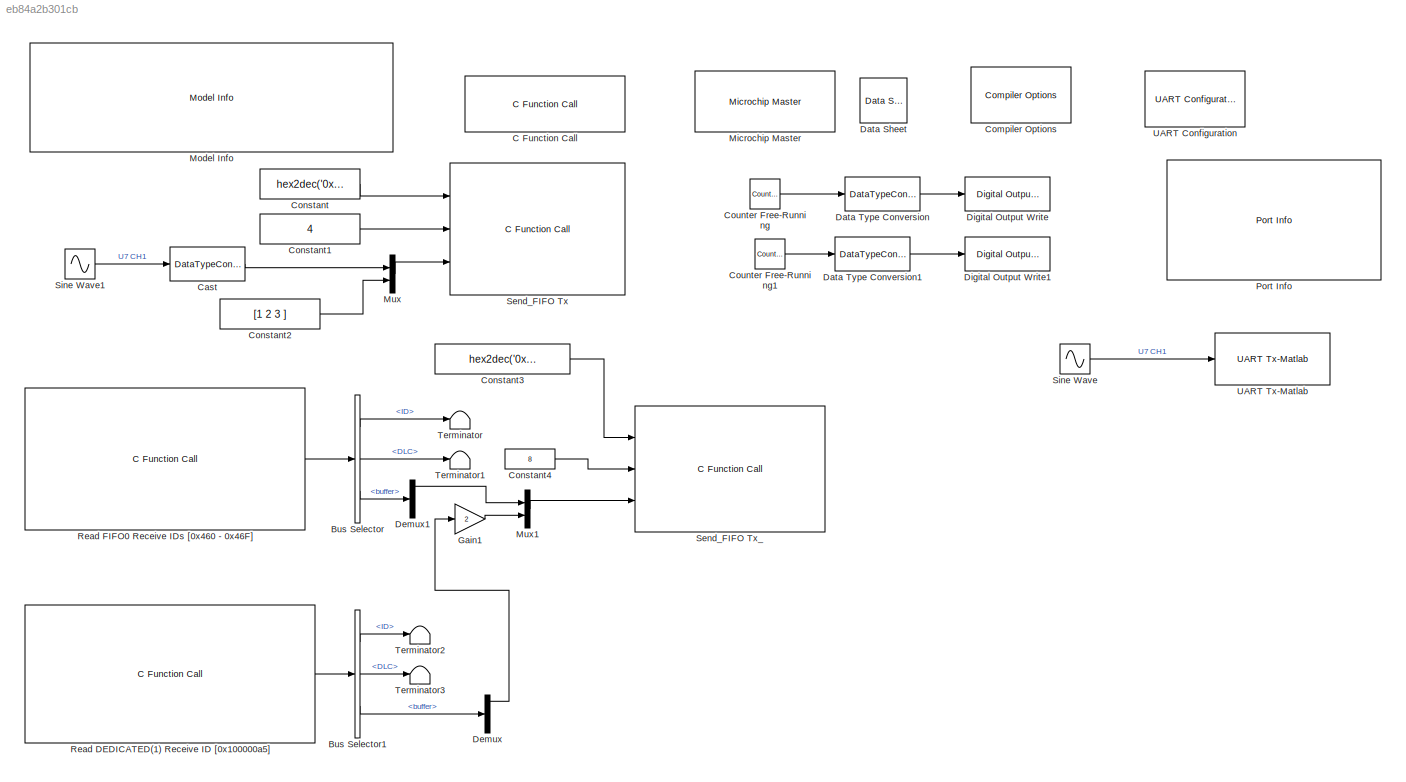
MODEL slx_eb84a2b301cb
KIND model
CONFIG AbsTol = auto
CONFIG EnableMultiTasking = on
CONFIG FixedStep = 0.001
CONFIG MaxStep = auto
CONFIG MinStep = auto
CONFIG PostLoadFcn = SAMx7_CAN_driver
CONFIG RelTol = 1e-3
CONFIG SampleTimeConstraint = Unconstrained
CONFIG SolverName = FixedStepDiscrete
CONFIG StartTime = 0.0
CONFIG StopTime = 10.0
BLOCK [BusSelector] Bus Selector
  OutputSignals = ID,DLC,buffer
  Ports = [1, 3]
BLOCK [BusSelector] Bus Selector1
  OutputSignals = ID,DLC,buffer
  Ports = [1, 3]
BLOCK [Reference] C Function Call  REF=MCHP_Blockset/User Functions/C Function Call
  Ports = []
  SourceBlock = MCHP_Blockset/User Functions/C Function Call
  SourceProductName = MPLAB Device Blocks for Simulink
  SourceType = C Function Call
  UserDataPersistent = on
BLOCK [DataTypeConversion] Cast
  OutDataTypeStr = uint8
  RndMeth = Floor
  SaturateOnIntegerOverflow = off
BLOCK [Reference] Compiler Options  REF=MCHP_Blockset/System Configuration/Compiler Options
  Ports = []
  Priority = 1
  SourceBlock = MCHP_Blockset/System Configuration/Compiler Options
  SourceProductName = MPLAB Device Blocks for Simulink
BLOCK [Constant] Constant
  OutDataTypeStr = uint32
  Value = hex2dec('0x469')
BLOCK [Constant] Constant1
  OutDataTypeStr = Inherit: Inherit via back propagation
  Value = 4
BLOCK [Constant] Constant2
  OutDataTypeStr = uint8
  Value = [1 2 3 ]
BLOCK [Constant] Constant3
  OutDataTypeStr = uint32
  Value = hex2dec('0x100000a5')
BLOCK [Constant] Constant4
  OutDataTypeStr = Inherit: Inherit via back propagation
  Value = 8
BLOCK [Reference] Counter Free-Running  REF=simulink/Sources/Counter
Free-Running
  Ports = [0, 1]
  SourceBlock = simulink/Sources/Counter\nFree-Running
  SourceProductBaseCode = SL
  SourceType = Counter Free-Running
BLOCK [Reference] Counter Free-Running1  REF=simulink/Sources/Counter
Free-Running
  Ports = [0, 1]
  SourceBlock = simulink/Sources/Counter\nFree-Running
  SourceProductBaseCode = SL
  SourceType = Counter Free-Running
BLOCK [Reference] Data Sheet  REF=MCHP_Blockset/System Info/Data Sheet
  AttributesFormatString = %<cpy_MCHP_Id>
  Ports = []
  SourceBlock = MCHP_Blockset/System Info/Data Sheet
  SourceProductName = MPLAB Device Blocks for Simulink
BLOCK [DataTypeConversion] Data Type Conversion
  OutDataTypeStr = boolean
  RndMeth = Floor
  SaturateOnIntegerOverflow = off
BLOCK [DataTypeConversion] Data Type Conversion1
  OutDataTypeStr = boolean
  RndMeth = Floor
  SaturateOnIntegerOverflow = off
BLOCK [Demux] Demux
  Outputs = [4 1 1 1 1]
  Ports = [1, 5]
BLOCK [Demux] Demux1
  Outputs = [4 1 1 1 1]
  Ports = [1, 5]
BLOCK [Reference] Digital Output Write  REF=MCHP_Blockset/Digital IO/Digital Output
Write
  Ports = [1]
  SourceBlock = MCHP_Blockset/Digital IO/Digital Output\nWrite
  SourceProductName = MPLAB Device Blocks for Simulink
  SourceType = Output driver for Digital Output Pins
BLOCK [Reference] Digital Output Write1  REF=MCHP_Blockset/Digital IO/Digital Output
Write
  Ports = [1]
  SourceBlock = MCHP_Blockset/Digital IO/Digital Output\nWrite
  SourceProductName = MPLAB Device Blocks for Simulink
  SourceType = Output driver for Digital Output Pins
BLOCK [Gain] Gain1
  Gain = 2
  OutDataTypeStr = Inherit: Same as input
BLOCK [Reference] Microchip Master  REF=MCHP_Blockset/System Configuration/Microchip Master
  Ports = []
  Priority = 1
  SourceBlock = MCHP_Blockset/System Configuration/Microchip Master
  SourceProductName = MPLAB Device Blocks for Simulink
BLOCK [Reference] Model Info  REF=simulink/Model-Wide
Utilities/Model Info
  Ports = []
  SourceBlock = simulink/Model-Wide\nUtilities/Model Info
  SourceProductBaseCode = SL
  SourceType = CMBlock
BLOCK [Mux] Mux
  DisplayOption = bar
  Inputs = 2
  Ports = [2, 1]
BLOCK [Mux] Mux1
  DisplayOption = bar
  Inputs = 2
  Ports = [2, 1]
BLOCK [Reference] Port Info  REF=MCHP_Blockset/System Info/Port Info
  Ports = []
  SourceBlock = MCHP_Blockset/System Info/Port Info
  SourceProductName = MPLAB Device Blocks for Simulink
BLOCK [Reference] Read DEDICATED(1) Receive ID [0x100000a5]  REF=MCHP_Blockset/User Functions/C Function Call
  Ports = [0, 1]
  SourceBlock = MCHP_Blockset/User Functions/C Function Call
  SourceProductName = MPLAB Device Blocks for Simulink
  SourceType = C Function Call
  UserDataPersistent = on
BLOCK [Reference] Read FIFO0 Receive IDs [0x460 - 0x46F]  REF=MCHP_Blockset/User Functions/C Function Call
  Ports = [0, 1]
  SourceBlock = MCHP_Blockset/User Functions/C Function Call
  SourceProductName = MPLAB Device Blocks for Simulink
  SourceType = C Function Call
  UserDataPersistent = on
BLOCK [Reference] Send_FIFO Tx  REF=MCHP_Blockset/User Functions/C Function Call
  Ports = [3]
  SourceBlock = MCHP_Blockset/User Functions/C Function Call
  SourceProductName = MPLAB Device Blocks for Simulink
  SourceType = C Function Call
  UserDataPersistent = on
BLOCK [Reference] Send_FIFO Tx_  REF=MCHP_Blockset/User Functions/C Function Call
  Ports = [3]
  SourceBlock = MCHP_Blockset/User Functions/C Function Call
  SourceProductName = MPLAB Device Blocks for Simulink
  SourceType = C Function Call
  UserDataPersistent = on
BLOCK [Sin] Sine Wave
  Ports = [0, 1]
  SampleTime = .001
BLOCK [Sin] Sine Wave1
  Amplitude = 100
  Bias = 100
  Ports = [0, 1]
  SampleTime = .001
BLOCK [Terminator] Terminator
BLOCK [Terminator] Terminator1
BLOCK [Terminator] Terminator2
BLOCK [Terminator] Terminator3
BLOCK [Reference] UART Configuration  REF=MCHP_Blockset/BUS UART/UART Configuration
  Ports = []
  SourceBlock = MCHP_Blockset/BUS UART/UART Configuration
  SourceProductName = MPLAB Device Blocks for Simulink
  SourceType = Configuration for UART peripheral
BLOCK [Reference] UART Tx-Matlab  REF=MCHP_Blockset/BUS UART/UART Tx-Matlab
  Ports = [1]
  SourceBlock = MCHP_Blockset/BUS UART/UART Tx-Matlab
  SourceProductName = MPLAB Device Blocks for Simulink
  SourceType = Higl Level UART protocol
LINE Bus Selector1:1 -> Terminator2:1
LINE Bus Selector1:2 -> Terminator3:1
LINE Bus Selector1:3 -> Demux:1
LINE Bus Selector:1 -> Terminator:1
LINE Bus Selector:2 -> Terminator1:1
LINE Bus Selector:3 -> Demux1:1
LINE Cast:1 -> Mux:1
LINE Constant1:1 -> Send_FIFO Tx:2
LINE Constant2:1 -> Mux:2
LINE Constant3:1 -> Send_FIFO Tx_:1
LINE Constant4:1 -> Send_FIFO Tx_:2
LINE Constant:1 -> Send_FIFO Tx:1
LINE Counter Free-Running1:1 -> Data Type Conversion1:1
LINE Counter Free-Running:1 -> Data Type Conversion:1
LINE Data Type Conversion1:1 -> Digital Output Write1:1
LINE Data Type Conversion:1 -> Digital Output Write:1
LINE Demux1:1 -> Mux1:1
LINE Demux:1 -> Gain1:1
LINE Gain1:1 -> Mux1:2
LINE Mux1:1 -> Send_FIFO Tx_:3
LINE Mux:1 -> Send_FIFO Tx:3
LINE Read DEDICATED(1) Receive ID [0x100000a5]:1 -> Bus Selector1:1
LINE Read FIFO0 Receive IDs [0x460 - 0x46F]:1 -> Bus Selector:1
LINE Sine Wave1:1 -> Cast:1
LINE Sine Wave:1 -> UART Tx-Matlab:1
